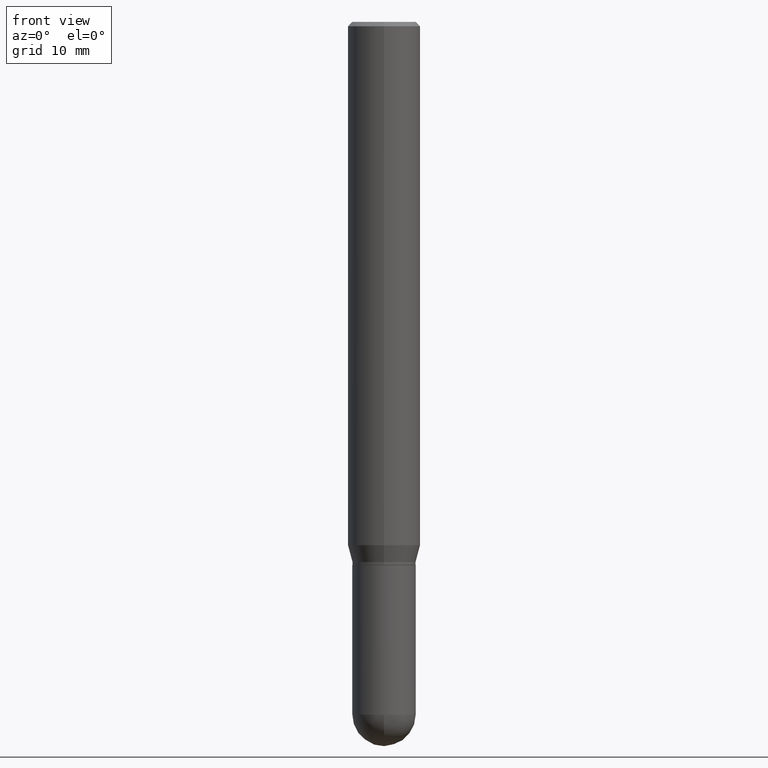
[diagram: clean part render]
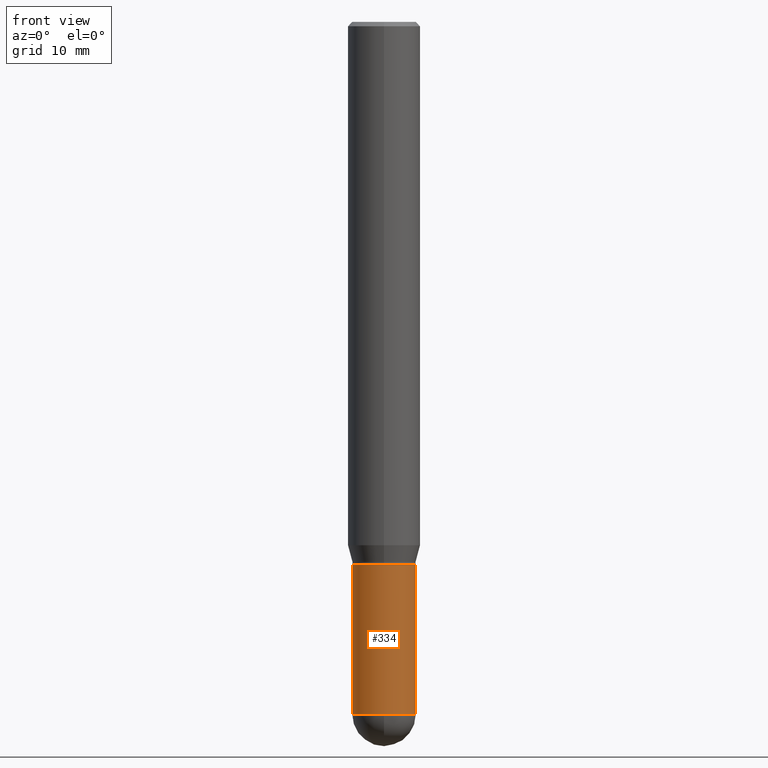
[diagram: same view with one face highlighted and labeled with its STEP entity id]
A machine part, front view. The second image highlights one B-rep face of the part: STEP entity #334.
In plain terms, the highlighted cylindrical surface (edge-blend (fillet) strip) has radius 2.7788 mm, axis along (-0, 0, 1).
Its self-contained STEP definition (entity closure, byte-faithful):
#3 = CARTESIAN_POINT ( 'NONE',  ( 4.585254011597131119E-29, -6.546527510330898707E-15, -1.875000000000000000 ) ) ;
#21 = DIRECTION ( 'NONE',  ( -2.445468806185136597E-29, 3.491481338843145583E-15, 1.000000000000000000 ) ) ;
#23 = VERTEX_POINT ( 'NONE', #124 ) ;
#40 = EDGE_CURVE ( 'NONE', #505, #294, #162, .T. ) ;
#43 = AXIS2_PLACEMENT_3D ( 'NONE', #104, #367, #256 ) ;
#49 = DIRECTION ( 'NONE',  ( -2.445468806185136597E-29, 3.491481338843145583E-15, 1.000000000000000000 ) ) ;
#57 = DIRECTION ( 'NONE',  ( 1.000000000000000000, -6.982962677686269866E-15, 0.000000000000000000 ) ) ;
#61 = ORIENTED_EDGE ( 'NONE', *, *, #127, .T. ) ;
#70 = DIRECTION ( 'NONE',  ( -2.445468806185136877E-29, 3.491481338843145188E-15, 1.000000000000000000 ) ) ;
#76 = EDGE_CURVE ( 'NONE', #23, #505, #198, .T. ) ;
#101 = ORIENTED_EDGE ( 'NONE', *, *, #380, .T. ) ;
#104 = CARTESIAN_POINT ( 'NONE',  ( 0.000000000000000000, 0.000000000000000000, 0.000000000000000000 ) ) ;
#124 = CARTESIAN_POINT ( 'NONE',  ( -0.1093999999999999972, -6.669297646563111468E-15, -2.390600000000000058 ) ) ;
#127 = EDGE_CURVE ( 'NONE', #325, #339, #448, .T. ) ;
#130 = CIRCLE ( 'NONE', #181, 0.1093999999999999972 ) ;
#138 = CARTESIAN_POINT ( 'NONE',  ( 0.1093999999999999972, -8.210567516423539018E-15, -2.390600000000000058 ) ) ;
#141 = CYLINDRICAL_SURFACE ( 'NONE', #43, 0.1093999999999999972 ) ;
#151 = ORIENTED_EDGE ( 'NONE', *, *, #40, .F. ) ;
#162 = CIRCLE ( 'NONE', #456, 0.1093999999999999972 ) ;
#164 = DIRECTION ( 'NONE',  ( 1.000000000000000000, -6.982962677686269866E-15, 0.000000000000000000 ) ) ;
#178 = VECTOR ( 'NONE', #70, 39.37007874015748143 ) ;
#181 = AXIS2_PLACEMENT_3D ( 'NONE', #293, #21, #57 ) ;
#185 = EDGE_LOOP ( 'NONE', ( #230, #272, #61, #101, #151 ) ) ;
#198 = LINE ( 'NONE', #354, #503 ) ;
#228 = AXIS2_PLACEMENT_3D ( 'NONE', #238, #49, #358 ) ;
#230 = ORIENTED_EDGE ( 'NONE', *, *, #76, .F. ) ;
#231 = CARTESIAN_POINT ( 'NONE',  ( 0.1093999999999999972, -7.639361169388775718E-16, 5.334537392720753909E-30 ) ) ;
#238 = CARTESIAN_POINT ( 'NONE',  ( 5.846137728066187200E-29, -8.346735288638422607E-15, -2.390600000000000058 ) ) ;
#256 = DIRECTION ( 'NONE',  ( 1.000000000000000000, -6.982962677686266711E-15, 4.876176775795935793E-29 ) ) ;
#268 = EDGE_CURVE ( 'NONE', #23, #325, #130, .T. ) ;
#272 = ORIENTED_EDGE ( 'NONE', *, *, #268, .T. ) ;
#285 = DIRECTION ( 'NONE',  ( -2.445468806185136597E-29, 3.491481338843145583E-15, 1.000000000000000000 ) ) ;
#290 = CARTESIAN_POINT ( 'NONE',  ( 0.1093999999999999972, -7.310463627269777068E-15, -1.875000000000000000 ) ) ;
#293 = CARTESIAN_POINT ( 'NONE',  ( 5.846137728066187200E-29, -8.346735288638422607E-15, -2.390600000000000058 ) ) ;
#294 = VERTEX_POINT ( 'NONE', #290 ) ;
#325 = VERTEX_POINT ( 'NONE', #332 ) ;
#332 = CARTESIAN_POINT ( 'NONE',  ( -7.773337529214909122E-16, -0.1094000000000083378, -2.390599999999999614 ) ) ;
#334 = ADVANCED_FACE ( 'NONE', ( #495 ), #141, .T. ) ;
#339 = VERTEX_POINT ( 'NONE', #138 ) ;
#354 = CARTESIAN_POINT ( 'NONE',  ( -0.1093999999999999972, 7.773337529215495838E-16, -5.381314988738867416E-30 ) ) ;
#358 = DIRECTION ( 'NONE',  ( 1.000000000000000000, -6.982962677686269866E-15, 0.000000000000000000 ) ) ;
#367 = DIRECTION ( 'NONE',  ( -2.445468806185136597E-29, 3.491481338843145583E-15, 1.000000000000000000 ) ) ;
#380 = EDGE_CURVE ( 'NONE', #339, #294, #421, .T. ) ;
#396 = DIRECTION ( 'NONE',  ( -2.445468806185136877E-29, 3.491481338843145188E-15, 1.000000000000000000 ) ) ;
#421 = LINE ( 'NONE', #231, #178 ) ;
#448 = CIRCLE ( 'NONE', #228, 0.1093999999999999972 ) ;
#456 = AXIS2_PLACEMENT_3D ( 'NONE', #3, #285, #164 ) ;
#495 = FACE_OUTER_BOUND ( 'NONE', #185, .T. ) ;
#503 = VECTOR ( 'NONE', #396, 39.37007874015748143 ) ;
#505 = VERTEX_POINT ( 'NONE', #508 ) ;
#508 = CARTESIAN_POINT ( 'NONE',  ( -0.1093999999999999972, -6.669297646563111468E-15, -1.875000000000000000 ) ) ;